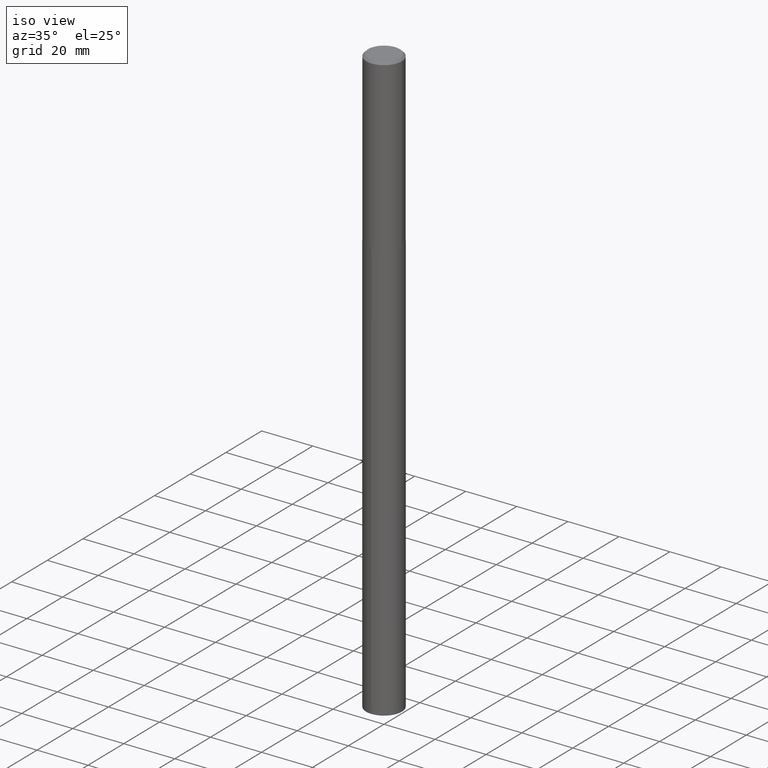
[diagram: clean part render]
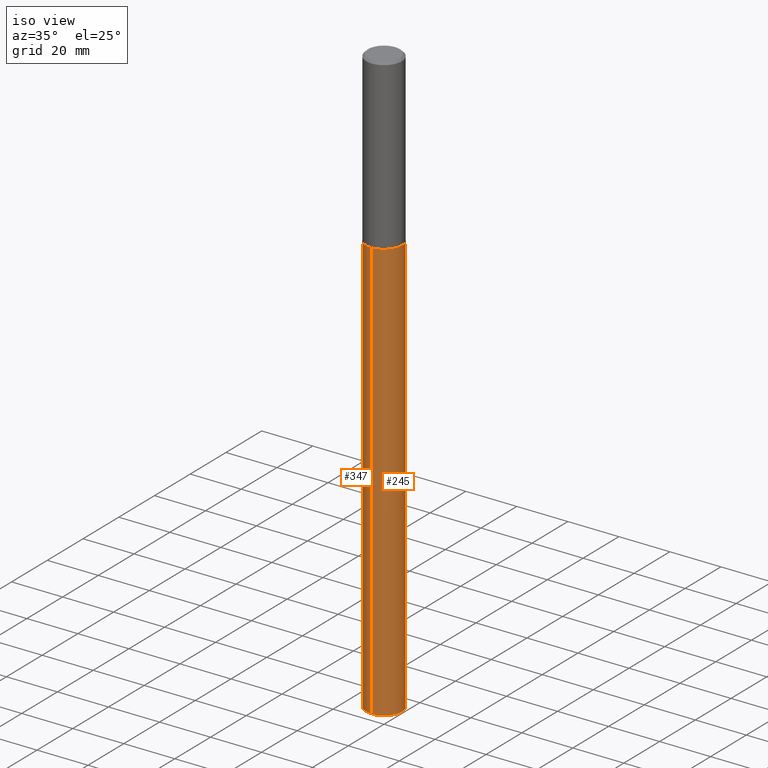
[diagram: same view with one multi-face feature highlighted, each face labeled with its STEP entity id]
A machine part, iso view. The highlighted faces form ONE feature: a constant-radius fillet chain: 2 tangent blend faces with common blend radius 7.0002 mm. The faces share edges in the B-rep.
Their STEP definitions:
[1] entity #347 (Cylinder):
#7 = EDGE_CURVE ( 'NONE', #189, #349, #224, .T. ) ;
#10 = CARTESIAN_POINT ( 'NONE',  ( 1.958255779754899698E-15, 0.2755999999999909633, -2.598900000000000432 ) ) ;
#33 = DIRECTION ( 'NONE',  ( -2.445206291822063677E-29, 3.491857274352455641E-15, 1.000000000000000000 ) ) ;
#54 = FACE_OUTER_BOUND ( 'NONE', #147, .T. ) ;
#72 = CARTESIAN_POINT ( 'NONE',  ( 1.958255779755059048E-15, 0.2755999999999682593, -9.104438272920521769 ) ) ;
#92 = VERTEX_POINT ( 'NONE', #72 ) ;
#105 = DIRECTION ( 'NONE',  ( -6.982962677686265922E-15, -1.000000000000000000, 3.964946289788480896E-15 ) ) ;
#111 = ORIENTED_EDGE ( 'NONE', *, *, #272, .F. ) ;
#114 = DIRECTION ( 'NONE',  ( -2.445206291822063957E-29, 3.491857274352455641E-15, 1.000000000000000000 ) ) ;
#129 = ORIENTED_EDGE ( 'NONE', *, *, #7, .T. ) ;
#132 = VECTOR ( 'NONE', #218, 39.37007874015748143 ) ;
#147 = EDGE_LOOP ( 'NONE', ( #111, #379, #129, #316 ) ) ;
#169 = CARTESIAN_POINT ( 'NONE',  ( 6.355528880394550316E-29, -9.074010851519450181E-15, -2.598899999999999544 ) ) ;
#172 = CARTESIAN_POINT ( 'NONE',  ( 6.355528880394550316E-29, -9.074010851519450181E-15, -2.598899999999999544 ) ) ;
#189 = VERTEX_POINT ( 'NONE', #314 ) ;
#218 = DIRECTION ( 'NONE',  ( -2.445206291822063957E-29, 3.491857274352455641E-15, 1.000000000000000000 ) ) ;
#224 = LINE ( 'NONE', #353, #132 ) ;
#235 = AXIS2_PLACEMENT_3D ( 'NONE', #172, #359, #302 ) ;
#241 = CARTESIAN_POINT ( 'NONE',  ( 2.226291199702905030E-28, -3.179042199339528654E-14, -9.104438272920521769 ) ) ;
#246 = EDGE_CURVE ( 'NONE', #92, #189, #334, .T. ) ;
#271 = CARTESIAN_POINT ( 'NONE',  ( 1.958255779755059837E-15, 0.2755999999999909633, -2.598900000000000432 ) ) ;
#272 = EDGE_CURVE ( 'NONE', #92, #321, #309, .T. ) ;
#299 = VECTOR ( 'NONE', #114, 39.37007874015748143 ) ;
#302 = DIRECTION ( 'NONE',  ( -6.982962677686265922E-15, -1.000000000000000000, 3.964946289788480896E-15 ) ) ;
#306 = DIRECTION ( 'NONE',  ( -2.445206291822063677E-29, 3.491857274352455641E-15, 1.000000000000000000 ) ) ;
#309 = LINE ( 'NONE', #10, #299 ) ;
#314 = CARTESIAN_POINT ( 'NONE',  ( -1.924504513970112495E-15, -0.2756000000000318195, -9.104438272920519992 ) ) ;
#316 = ORIENTED_EDGE ( 'NONE', *, *, #362, .F. ) ;
#317 = AXIS2_PLACEMENT_3D ( 'NONE', #241, #33, #343 ) ;
#321 = VERTEX_POINT ( 'NONE', #271 ) ;
#323 = AXIS2_PLACEMENT_3D ( 'NONE', #169, #306, #105 ) ;
#333 = CARTESIAN_POINT ( 'NONE',  ( -1.924504513970271451E-15, -0.2756000000000091155, -2.598899999999998212 ) ) ;
#334 = CIRCLE ( 'NONE', #317, 0.2756000000000000116 ) ;
#343 = DIRECTION ( 'NONE',  ( -6.982962677686265922E-15, -1.000000000000000000, 3.964946289788480896E-15 ) ) ;
#347 = ADVANCED_FACE ( 'NONE', ( #54 ), #363, .T. ) ;
#348 = CIRCLE ( 'NONE', #235, 0.2756000000000000116 ) ;
#349 = VERTEX_POINT ( 'NONE', #333 ) ;
#353 = CARTESIAN_POINT ( 'NONE',  ( -1.924504513970271451E-15, -0.2756000000000091155, -2.598899999999998212 ) ) ;
#359 = DIRECTION ( 'NONE',  ( -2.445206291822063677E-29, 3.491857274352455641E-15, 1.000000000000000000 ) ) ;
#362 = EDGE_CURVE ( 'NONE', #321, #349, #348, .T. ) ;
#363 = CYLINDRICAL_SURFACE ( 'NONE', #323, 0.2756000000000000116 ) ;
#379 = ORIENTED_EDGE ( 'NONE', *, *, #246, .T. ) ;
[2] entity #245 (Cylinder):
#5 = ORIENTED_EDGE ( 'NONE', *, *, #7, .F. ) ;
#7 = EDGE_CURVE ( 'NONE', #189, #349, #224, .T. ) ;
#8 = CYLINDRICAL_SURFACE ( 'NONE', #78, 0.2756000000000000116 ) ;
#10 = CARTESIAN_POINT ( 'NONE',  ( 1.958255779754899698E-15, 0.2755999999999909633, -2.598900000000000432 ) ) ;
#13 = CIRCLE ( 'NONE', #56, 0.2756000000000000116 ) ;
#16 = ORIENTED_EDGE ( 'NONE', *, *, #212, .T. ) ;
#26 = CARTESIAN_POINT ( 'NONE',  ( 6.355528880394550316E-29, -9.074010851519450181E-15, -2.598899999999999544 ) ) ;
#34 = DIRECTION ( 'NONE',  ( -2.445206291822063677E-29, 3.491857274352455641E-15, 1.000000000000000000 ) ) ;
#56 = AXIS2_PLACEMENT_3D ( 'NONE', #209, #340, #280 ) ;
#65 = EDGE_CURVE ( 'NONE', #349, #321, #161, .T. ) ;
#72 = CARTESIAN_POINT ( 'NONE',  ( 1.958255779755059048E-15, 0.2755999999999682593, -9.104438272920521769 ) ) ;
#78 = AXIS2_PLACEMENT_3D ( 'NONE', #375, #108, #89 ) ;
#89 = DIRECTION ( 'NONE',  ( -6.982962677686265922E-15, -1.000000000000000000, 3.964946289788480896E-15 ) ) ;
#92 = VERTEX_POINT ( 'NONE', #72 ) ;
#108 = DIRECTION ( 'NONE',  ( -2.445206291822063677E-29, 3.491857274352455641E-15, 1.000000000000000000 ) ) ;
#114 = DIRECTION ( 'NONE',  ( -2.445206291822063957E-29, 3.491857274352455641E-15, 1.000000000000000000 ) ) ;
#131 = ORIENTED_EDGE ( 'NONE', *, *, #272, .T. ) ;
#132 = VECTOR ( 'NONE', #218, 39.37007874015748143 ) ;
#161 = CIRCLE ( 'NONE', #202, 0.2756000000000000116 ) ;
#187 = ORIENTED_EDGE ( 'NONE', *, *, #65, .F. ) ;
#189 = VERTEX_POINT ( 'NONE', #314 ) ;
#202 = AXIS2_PLACEMENT_3D ( 'NONE', #26, #34, #207 ) ;
#207 = DIRECTION ( 'NONE',  ( -6.982962677686265922E-15, -1.000000000000000000, 3.964946289788480896E-15 ) ) ;
#209 = CARTESIAN_POINT ( 'NONE',  ( 2.226291199702905030E-28, -3.179042199339528654E-14, -9.104438272920521769 ) ) ;
#212 = EDGE_CURVE ( 'NONE', #189, #92, #13, .T. ) ;
#213 = FACE_OUTER_BOUND ( 'NONE', #256, .T. ) ;
#218 = DIRECTION ( 'NONE',  ( -2.445206291822063957E-29, 3.491857274352455641E-15, 1.000000000000000000 ) ) ;
#224 = LINE ( 'NONE', #353, #132 ) ;
#245 = ADVANCED_FACE ( 'NONE', ( #213 ), #8, .T. ) ;
#256 = EDGE_LOOP ( 'NONE', ( #16, #131, #187, #5 ) ) ;
#271 = CARTESIAN_POINT ( 'NONE',  ( 1.958255779755059837E-15, 0.2755999999999909633, -2.598900000000000432 ) ) ;
#272 = EDGE_CURVE ( 'NONE', #92, #321, #309, .T. ) ;
#280 = DIRECTION ( 'NONE',  ( -6.982962677686265922E-15, -1.000000000000000000, 3.964946289788480896E-15 ) ) ;
#299 = VECTOR ( 'NONE', #114, 39.37007874015748143 ) ;
#309 = LINE ( 'NONE', #10, #299 ) ;
#314 = CARTESIAN_POINT ( 'NONE',  ( -1.924504513970112495E-15, -0.2756000000000318195, -9.104438272920519992 ) ) ;
#321 = VERTEX_POINT ( 'NONE', #271 ) ;
#333 = CARTESIAN_POINT ( 'NONE',  ( -1.924504513970271451E-15, -0.2756000000000091155, -2.598899999999998212 ) ) ;
#340 = DIRECTION ( 'NONE',  ( -2.445206291822063677E-29, 3.491857274352455641E-15, 1.000000000000000000 ) ) ;
#349 = VERTEX_POINT ( 'NONE', #333 ) ;
#353 = CARTESIAN_POINT ( 'NONE',  ( -1.924504513970271451E-15, -0.2756000000000091155, -2.598899999999998212 ) ) ;
#375 = CARTESIAN_POINT ( 'NONE',  ( 6.355528880394550316E-29, -9.074010851519450181E-15, -2.598899999999999544 ) ) ;